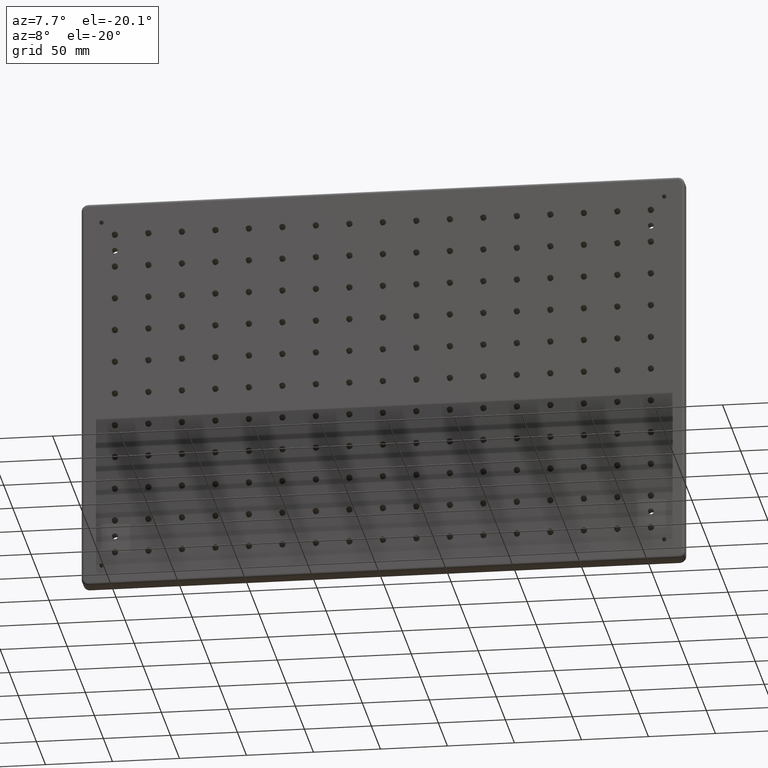
[diagram: clean part render]
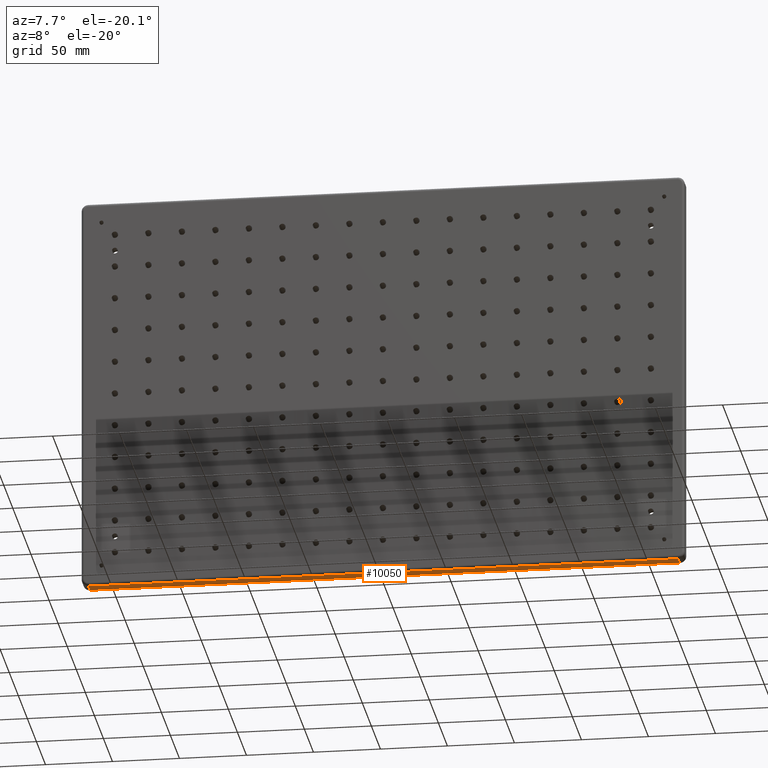
[diagram: same view with one face highlighted and labeled with its STEP entity id]
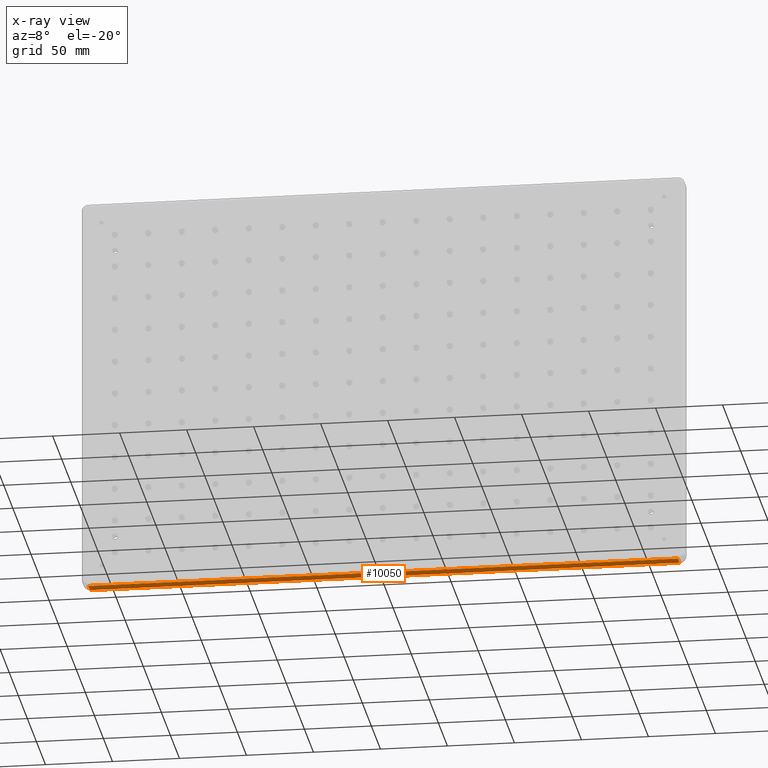
[diagram: x-ray of the same camera — body ghosted, the highlighted face saturated]
A machine part, auxiliary view. The second image highlights one B-rep face of the part: STEP entity #10050.
The next image is the same camera in x-ray: the body ghosted, the highlighted face saturated — about 0% of this face is hidden behind the body in this view.
In plain terms, the highlighted planar face has unit normal (0, 0, 1).
Its self-contained STEP definition (entity closure, byte-faithful):
#156 = ORIENTED_EDGE ( 'NONE', *, *, #6588, .T. ) ;
#364 = AXIS2_PLACEMENT_3D ( 'NONE', #12189, #9598, #6117 ) ;
#766 = CARTESIAN_POINT ( 'NONE',  ( 220.0000000000000000, -4.500000000000000000, -150.0000000000000000 ) ) ;
#1412 = CARTESIAN_POINT ( 'NONE',  ( 220.0000000000000000, 6.500000000000000000, -150.0000000000000000 ) ) ;
#1455 = CARTESIAN_POINT ( 'NONE',  ( 220.0000000000000000, 4.500000000000000000, -150.0000000000000000 ) ) ;
#2364 = VERTEX_POINT ( 'NONE', #1455 ) ;
#2554 = VERTEX_POINT ( 'NONE', #766 ) ;
#2558 = VECTOR ( 'NONE', #14878, 1000.000000000000000 ) ;
#4137 = EDGE_CURVE ( 'NONE', #2364, #2554, #6815, .T. ) ;
#4622 = VECTOR ( 'NONE', #8430, 1000.000000000000000 ) ;
#5522 = VECTOR ( 'NONE', #14488, 1000.000000000000000 ) ;
#5568 = CARTESIAN_POINT ( 'NONE',  ( -220.0000000000000000, -4.500000000000000000, -150.0000000000000000 ) ) ;
#5690 = CARTESIAN_POINT ( 'NONE',  ( -225.0000000000000000, 4.500000000000000000, -150.0000000000000000 ) ) ;
#5712 = VECTOR ( 'NONE', #7017, 1000.000000000000000 ) ;
#6117 = DIRECTION ( 'NONE',  ( 1.000000000000000000, 0.0000000000000000000, -0.0000000000000000000 ) ) ;
#6588 = EDGE_CURVE ( 'NONE', #10552, #2364, #13238, .T. ) ;
#6815 = LINE ( 'NONE', #1412, #5522 ) ;
#6822 = LINE ( 'NONE', #14402, #4622 ) ;
#6850 = EDGE_CURVE ( 'NONE', #2554, #12453, #6822, .T. ) ;
#6990 = ORIENTED_EDGE ( 'NONE', *, *, #4137, .T. ) ;
#7017 = DIRECTION ( 'NONE',  ( -0.0000000000000000000, 1.000000000000000000, -0.0000000000000000000 ) ) ;
#7332 = PLANE ( 'NONE',  #364 ) ;
#8430 = DIRECTION ( 'NONE',  ( -1.000000000000000000, 0.0000000000000000000, 0.0000000000000000000 ) ) ;
#9598 = DIRECTION ( 'NONE',  ( 0.0000000000000000000, 0.0000000000000000000, 1.000000000000000000 ) ) ;
#10050 = ADVANCED_FACE ( 'NONE', ( #12774 ), #7332, .F. ) ;
#10295 = ORIENTED_EDGE ( 'NONE', *, *, #6850, .T. ) ;
#10416 = ORIENTED_EDGE ( 'NONE', *, *, #12630, .T. ) ;
#10552 = VERTEX_POINT ( 'NONE', #14221 ) ;
#12189 = CARTESIAN_POINT ( 'NONE',  ( -225.0000000000000000, 6.500000000000000000, -150.0000000000000000 ) ) ;
#12453 = VERTEX_POINT ( 'NONE', #5568 ) ;
#12630 = EDGE_CURVE ( 'NONE', #12453, #10552, #14525, .T. ) ;
#12774 = FACE_OUTER_BOUND ( 'NONE', #13913, .T. ) ;
#13238 = LINE ( 'NONE', #5690, #2558 ) ;
#13913 = EDGE_LOOP ( 'NONE', ( #6990, #10295, #10416, #156 ) ) ;
#14215 = CARTESIAN_POINT ( 'NONE',  ( -220.0000000000000000, 6.500000000000000000, -150.0000000000000000 ) ) ;
#14221 = CARTESIAN_POINT ( 'NONE',  ( -220.0000000000000000, 4.500000000000000000, -150.0000000000000000 ) ) ;
#14402 = CARTESIAN_POINT ( 'NONE',  ( -220.0000000000000000, -4.500000000000000000, -150.0000000000000000 ) ) ;
#14488 = DIRECTION ( 'NONE',  ( 0.0000000000000000000, -1.000000000000000000, 0.0000000000000000000 ) ) ;
#14525 = LINE ( 'NONE', #14215, #5712 ) ;
#14878 = DIRECTION ( 'NONE',  ( 1.000000000000000000, -0.0000000000000000000, -0.0000000000000000000 ) ) ;